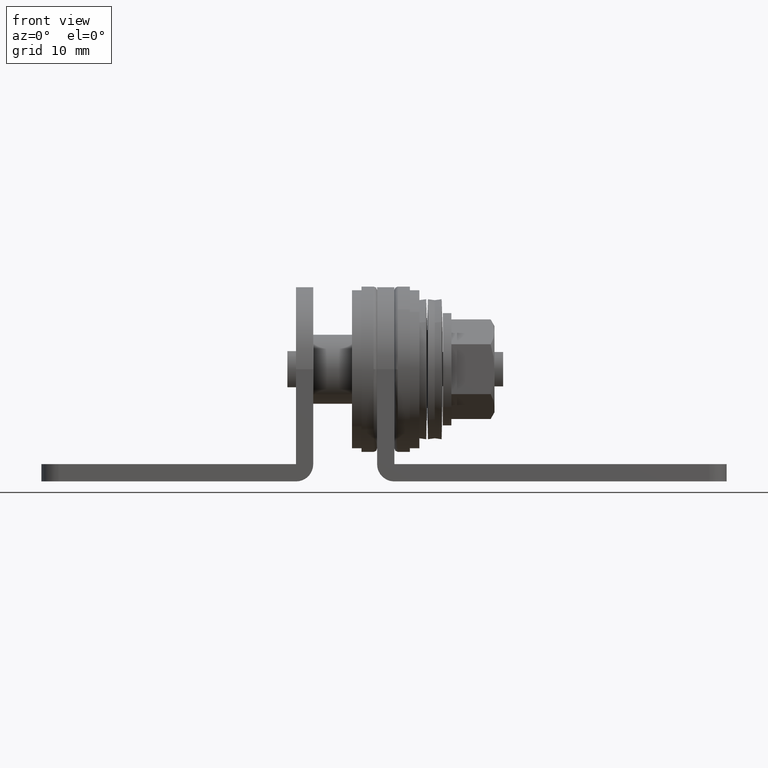
[diagram: clean part render]
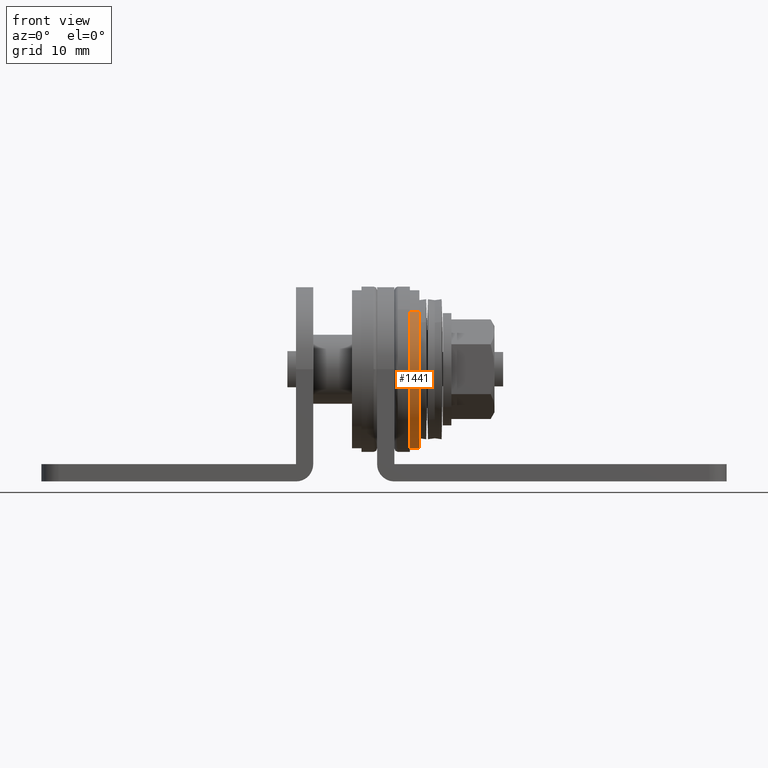
[diagram: same view with one face highlighted and labeled with its STEP entity id]
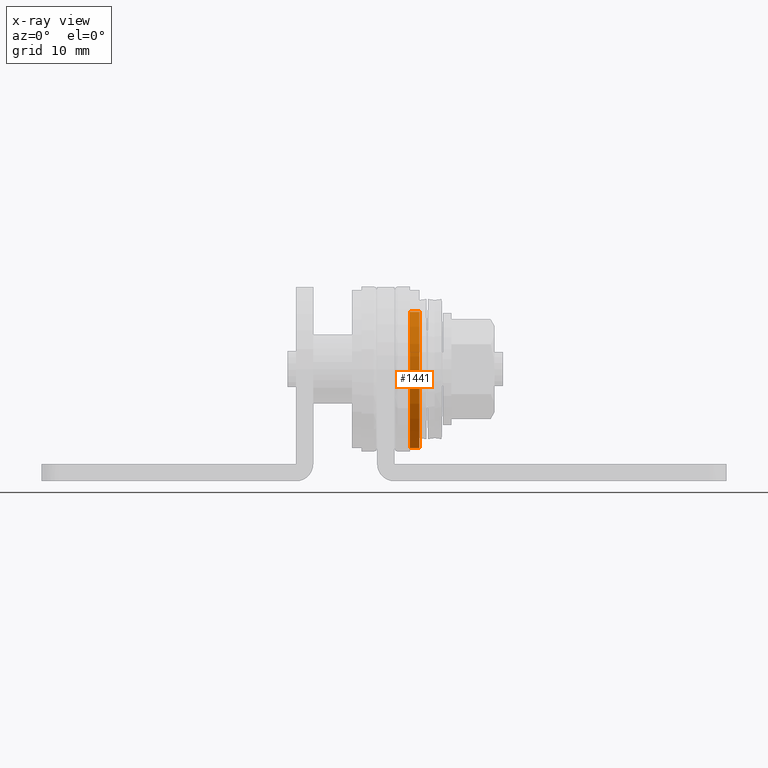
[diagram: x-ray of the same camera — body ghosted, the highlighted face saturated]
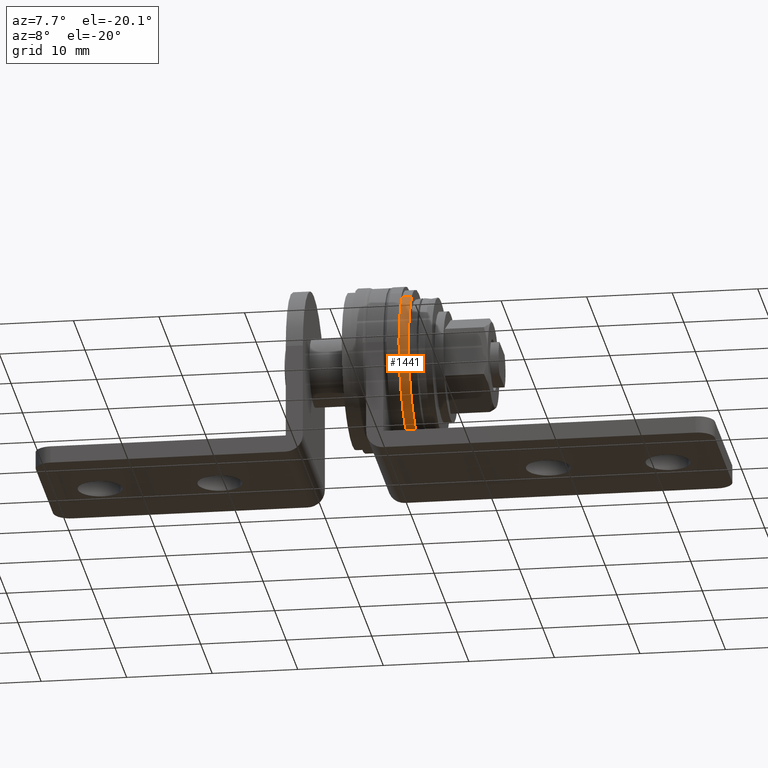
[diagram: same view with one face highlighted and labeled with its STEP entity id]
A machine part, front view. The second image highlights one B-rep face of the part: STEP entity #1441.
The next image is the same camera in x-ray: the body ghosted, the highlighted face saturated — about 0% of this face is hidden behind the body in this view.
A second angle (auxiliary view) of the same face is appended — the face is thin or edge-on in the first view.
In plain terms, the highlighted face is a freeform B-spline surface patch.
Its self-contained STEP definition (entity closure, byte-faithful):
#1164=CARTESIAN_POINT('',(11.199999237060551,-9.149999999999933,-0.000001119337425));
#1165=VERTEX_POINT('',#1164);
#1166=CARTESIAN_POINT('',(11.199999237060551,0.0,-9.150000000000002));
#1167=VERTEX_POINT('',#1166);
#1168=CARTESIAN_POINT('',(11.199999237060551,-9.149999999999933,-0.000001119337425));
#1169=CARTESIAN_POINT('',(11.199999237060551,-9.150114911184714,-0.636305251011757));
#1170=CARTESIAN_POINT('',(11.199999237060540,-9.051967114609912,-1.571978246917178));
#1171=CARTESIAN_POINT('',(11.199999237060551,-8.689042798725739,-2.948989197155811));
#1172=CARTESIAN_POINT('',(11.199999237060540,-8.278516273109323,-3.957540490876312));
#1173=CARTESIAN_POINT('',(11.199999237060560,-7.668954364464931,-5.033538343749192));
#1174=CARTESIAN_POINT('',(11.199999237060521,-6.908854679721618,-6.058491185583561));
#1175=CARTESIAN_POINT('',(11.199999237060551,-5.994640325106886,-6.950482365823654));
#1176=CARTESIAN_POINT('',(11.199999237060540,-4.760610037882865,-7.865838613176359));
#1177=CARTESIAN_POINT('',(11.199999237060540,-3.351282442046127,-8.586122095744925));
#1178=CARTESIAN_POINT('',(11.199999237060560,-1.609434698395024,-9.056502266310160));
#1179=CARTESIAN_POINT('',(11.199999237060510,-0.524005611581474,-9.150043101905634));
#1180=CARTESIAN_POINT('',(11.199999237060551,0.0,-9.150000000000002));
#1181=B_SPLINE_CURVE_WITH_KNOTS('',3,(#1168,#1169,#1170,#1171,#1172,#1173,#1174,#1175,#1176,#1177,#1178,#1179,#1180),.UNSPECIFIED.,.F.,.U.,(4,1,1,1,1,1,1,1,1,1,4),(0.000000016779888,1.908886816364495,2.807195448600396,4.266954421153693,5.165266921753062,6.512726634868161,8.084730829926761,8.983038433542980,11.116521729690140,12.800852982897160,14.372875942426321),.UNSPECIFIED.);
#1182=EDGE_CURVE('',#1165,#1167,#1181,.T.);
#1184=CARTESIAN_POINT('',(11.199999237067670,-6.298444145070935,6.637175320682058));
#1185=VERTEX_POINT('',#1184);
#1186=CARTESIAN_POINT('',(11.199999237067670,-6.298444145070935,6.637175320682058));
#1187=CARTESIAN_POINT('',(11.199999237067130,-6.845672038185554,6.118155503735961));
#1188=CARTESIAN_POINT('',(11.199999237065990,-7.686760500295582,5.094247021541133));
#1189=CARTESIAN_POINT('',(11.199999237064400,-8.455453687069086,3.589685409552490));
#1190=CARTESIAN_POINT('',(11.199999237062650,-8.998177335290826,1.953065276292743));
#1191=CARTESIAN_POINT('',(11.199999237061411,-9.150267763053654,0.792908389903752));
#1192=CARTESIAN_POINT('',(11.199999237060551,-9.149999999999933,-0.000001119337425));
#1193=B_SPLINE_CURVE_WITH_KNOTS('',3,(#1186,#1187,#1188,#1189,#1190,#1191,#1192),.UNSPECIFIED.,.F.,.U.,(4,1,1,1,4),(0.000000014678680,2.262596579858248,3.945033478521351,5.047325193400663,7.425953121137829),.UNSPECIFIED.);
#1194=EDGE_CURVE('',#1185,#1165,#1193,.T.);
#1227=CARTESIAN_POINT('',(11.199999237067670,6.298444145070974,-6.637175320682099));
#1228=VERTEX_POINT('',#1227);
#1240=CARTESIAN_POINT('',(11.199999237060551,0.0,-9.150000000000002));
#1241=CARTESIAN_POINT('',(11.199999237061119,0.506541936267795,-9.150039375999246));
#1242=CARTESIAN_POINT('',(11.199999237062221,1.483435075698072,-9.068676484154377));
#1243=CARTESIAN_POINT('',(11.199999237063700,2.786618423318424,-8.745351639044797));
#1244=CARTESIAN_POINT('',(11.199999237065100,3.998566318379912,-8.261847819625809));
#1245=CARTESIAN_POINT('',(11.199999237066290,5.166413942690389,-7.599305251733285));
#1246=CARTESIAN_POINT('',(11.199999237067329,5.931040045007780,-6.985886295055744));
#1247=CARTESIAN_POINT('',(11.199999237067670,6.298444145070974,-6.637175320682099));
#1248=B_SPLINE_CURVE_WITH_KNOTS('',3,(#1240,#1241,#1242,#1243,#1244,#1245,#1246,#1247),.UNSPECIFIED.,.F.,.U.,(4,1,1,1,1,4),(5.131846E-009,1.519629545863455,2.930723605138715,4.016163738718219,5.427257798008036,6.946887338730348),.UNSPECIFIED.);
#1249=EDGE_CURVE('',#1167,#1228,#1248,.T.);
#1319=CARTESIAN_POINT('',(12.299999237060449,-6.298444145424091,6.637175320346926));
#1320=VERTEX_POINT('',#1319);
#1321=CARTESIAN_POINT('',(11.199999237067670,-6.298444145070935,6.637175320682058));
#1322=CARTESIAN_POINT('',(12.299999237060449,-6.298444145424091,6.637175320346926));
#1323=QUASI_UNIFORM_CURVE('',1,(#1321,#1322),.UNSPECIFIED.,.F.,.U.);
#1324=EDGE_CURVE('',#1185,#1320,#1323,.T.);
#1355=CARTESIAN_POINT('',(12.299999237060449,6.298444145424130,-6.637175320346966));
#1356=VERTEX_POINT('',#1355);
#1367=CARTESIAN_POINT('',(11.199999237067670,6.298444145070974,-6.637175320682099));
#1368=CARTESIAN_POINT('',(12.299999237060449,6.298444145424130,-6.637175320346966));
#1369=QUASI_UNIFORM_CURVE('',1,(#1367,#1368),.UNSPECIFIED.,.F.,.U.);
#1370=EDGE_CURVE('',#1228,#1356,#1369,.T.);
#1375=CARTESIAN_POINT('',(11.172499237060549,-6.298444367597847,6.637175494762429));
#1376=CARTESIAN_POINT('',(11.172499237060549,-12.935619862360276,0.338731127164582));
#1377=CARTESIAN_POINT('',(11.172499237060549,-6.637175494762429,-6.298444367597847));
#1378=CARTESIAN_POINT('',(11.172499237060547,-0.338731127164582,-12.935619862360278));
#1379=CARTESIAN_POINT('',(11.172499237060549,6.298444367597847,-6.637175494762429));
#1380=CARTESIAN_POINT('',(12.328186737060451,-6.298444367597847,6.637175494762429));
#1381=CARTESIAN_POINT('',(12.328186737060445,-12.935619862360276,0.338731127164582));
#1382=CARTESIAN_POINT('',(12.328186737060451,-6.637175494762429,-6.298444367597847));
#1383=CARTESIAN_POINT('',(12.328186737060443,-0.338731127164582,-12.935619862360278));
#1384=CARTESIAN_POINT('',(12.328186737060451,6.298444367597847,-6.637175494762429));
#1392=(BOUNDED_SURFACE()B_SPLINE_SURFACE(2,1,((#1375,#1380),(#1376,#1381),(#1377,#1382),(#1378,#1383),(#1379,#1384)),.UNSPECIFIED.,.F.,.F.,.U.)B_SPLINE_SURFACE_WITH_KNOTS((3,2,3),(2,2),(0.0,15.160216382855280,30.320432765710549),(0.0,1.0),.UNSPECIFIED.)GEOMETRIC_REPRESENTATION_ITEM()RATIONAL_B_SPLINE_SURFACE(((1.0,1.0),(0.707106781186548,0.707106781186548),(1.0,1.0),(0.707106781186548,0.707106781186548),(1.0,1.0)))REPRESENTATION_ITEM('')SURFACE());
#1393=ORIENTED_EDGE('',*,*,#1249,.T.);
#1394=ORIENTED_EDGE('',*,*,#1370,.T.);
#1395=CARTESIAN_POINT('',(12.299999237060449,0.0,-9.150000000000002));
#1396=VERTEX_POINT('',#1395);
#1397=CARTESIAN_POINT('',(12.299999237060449,0.0,-9.150000000000002));
#1398=CARTESIAN_POINT('',(12.299999237060449,0.506541148371222,-9.150036786635662));
#1399=CARTESIAN_POINT('',(12.299999237060449,1.555791224610689,-9.062643859562249));
#1400=CARTESIAN_POINT('',(12.299999237060440,3.243046029130022,-8.622901761057463));
#1401=CARTESIAN_POINT('',(12.299999237060449,4.876983560715657,-7.819939252693847));
#1402=CARTESIAN_POINT('',(12.299999237060430,5.878558641619875,-7.035706163658167));
#1403=CARTESIAN_POINT('',(12.299999237060449,6.298444145424130,-6.637175320346966));
#1404=B_SPLINE_CURVE_WITH_KNOTS('',3,(#1397,#1398,#1399,#1400,#1401,#1402,#1403),.UNSPECIFIED.,.F.,.U.,(4,1,1,1,4),(5.133221E-009,1.519629545970926,3.147812348999761,5.210165505700958,6.946887339217209),.UNSPECIFIED.);
#1405=EDGE_CURVE('',#1396,#1356,#1404,.T.);
#1406=ORIENTED_EDGE('',*,*,#1405,.F.);
#1407=CARTESIAN_POINT('',(12.299999237060449,-9.149999999999933,-0.000001119337425));
#1408=VERTEX_POINT('',#1407);
#1409=CARTESIAN_POINT('',(12.299999237060449,-9.149999999999933,-0.000001119337425));
#1410=CARTESIAN_POINT('',(12.299999237060440,-9.150032724025801,-0.486577789089310));
#1411=CARTESIAN_POINT('',(12.299999237060449,-9.075185802215875,-1.422294638123790));
#1412=CARTESIAN_POINT('',(12.299999237060449,-8.745680312746238,-2.809879249689813));
#1413=CARTESIAN_POINT('',(12.299999237060440,-8.278514985741689,-3.957542041845032));
#1414=CARTESIAN_POINT('',(12.299999237060460,-7.668954811883208,-5.033538472014298));
#1415=CARTESIAN_POINT('',(12.299999237060430,-6.908846553109231,-6.058479698765392));
#1416=CARTESIAN_POINT('',(12.299999237060460,-5.752693976127582,-7.186687158193176));
#1417=CARTESIAN_POINT('',(12.299999237060430,-4.401705931522911,-8.077441993674674));
#1418=CARTESIAN_POINT('',(12.299999237060460,-3.090842797076403,-8.639257136349466));
#1419=CARTESIAN_POINT('',(12.299999237060430,-1.684258033621872,-9.037849892693389));
#1420=CARTESIAN_POINT('',(12.299999237060479,-0.673736534789794,-9.150132913511571));
#1421=CARTESIAN_POINT('',(12.299999237060449,0.0,-9.150000000000002));
#1422=B_SPLINE_CURVE_WITH_KNOTS('',3,(#1409,#1410,#1411,#1412,#1413,#1414,#1415,#1416,#1417,#1418,#1419,#1420,#1421),.UNSPECIFIED.,.F.,.U.,(4,1,1,1,1,1,1,1,1,1,4),(0.000000016779888,1.459734897762965,2.807195448600396,4.266954421153693,5.165266921753062,6.512726634868161,8.084730829926761,9.993637911168026,11.341098721588191,12.351697840212291,14.372875942426321),.UNSPECIFIED.);
#1423=EDGE_CURVE('',#1408,#1396,#1422,.T.);
#1424=ORIENTED_EDGE('',*,*,#1423,.F.);
#1425=CARTESIAN_POINT('',(12.299999237060449,-6.298444145424091,6.637175320346926));
#1426=CARTESIAN_POINT('',(12.299999237060440,-6.621075128454249,6.331010583646284));
#1427=CARTESIAN_POINT('',(12.299999237060479,-7.404479115046931,5.470885693986344));
#1428=CARTESIAN_POINT('',(12.299999237060410,-8.257279956060328,4.075211794929551));
#1429=CARTESIAN_POINT('',(12.299999237060490,-8.769521010575430,2.693070363165627));
#1430=CARTESIAN_POINT('',(12.299999237060350,-9.071519811403622,1.411683746582575));
#1431=CARTESIAN_POINT('',(12.299999237060479,-9.150056332300334,0.560816648624934));
#1432=CARTESIAN_POINT('',(12.299999237060449,-9.149999999999933,-0.000001119337425));
#1433=B_SPLINE_CURVE_WITH_KNOTS('',3,(#1425,#1426,#1427,#1428,#1429,#1430,#1431,#1432),.UNSPECIFIED.,.F.,.U.,(4,1,1,1,1,4),(0.000000014680655,1.334348640084535,3.480919657048573,4.873275969991519,5.743510944049010,7.425953120650951),.UNSPECIFIED.);
#1434=EDGE_CURVE('',#1320,#1408,#1433,.T.);
#1435=ORIENTED_EDGE('',*,*,#1434,.F.);
#1436=ORIENTED_EDGE('',*,*,#1324,.F.);
#1437=ORIENTED_EDGE('',*,*,#1194,.T.);
#1438=ORIENTED_EDGE('',*,*,#1182,.T.);
#1439=EDGE_LOOP('',(#1393,#1394,#1406,#1424,#1435,#1436,#1437,#1438));
#1440=FACE_OUTER_BOUND('',#1439,.T.);
#1441=ADVANCED_FACE('',(#1440),#1392,.T.);